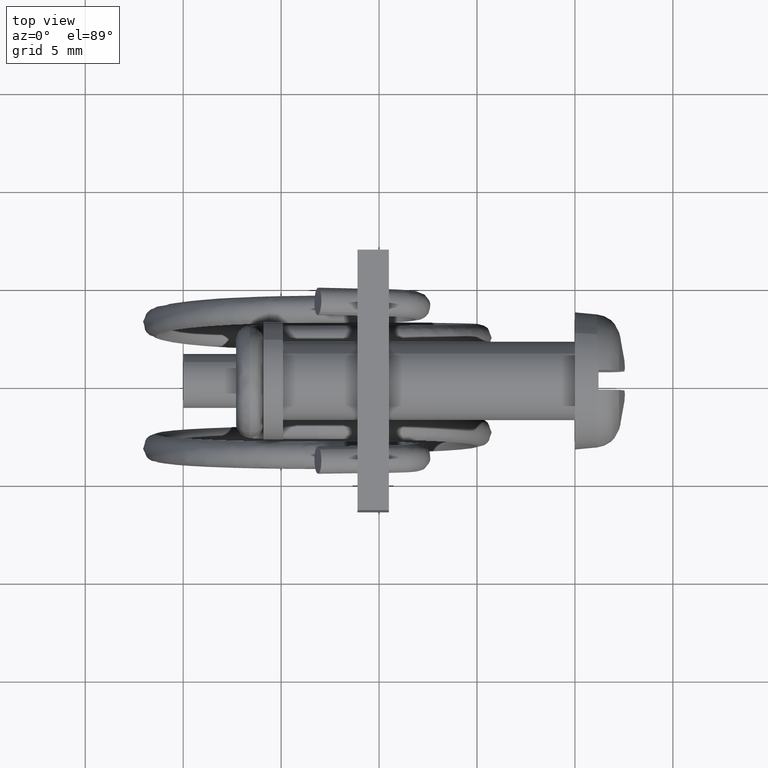
[diagram: clean part render]
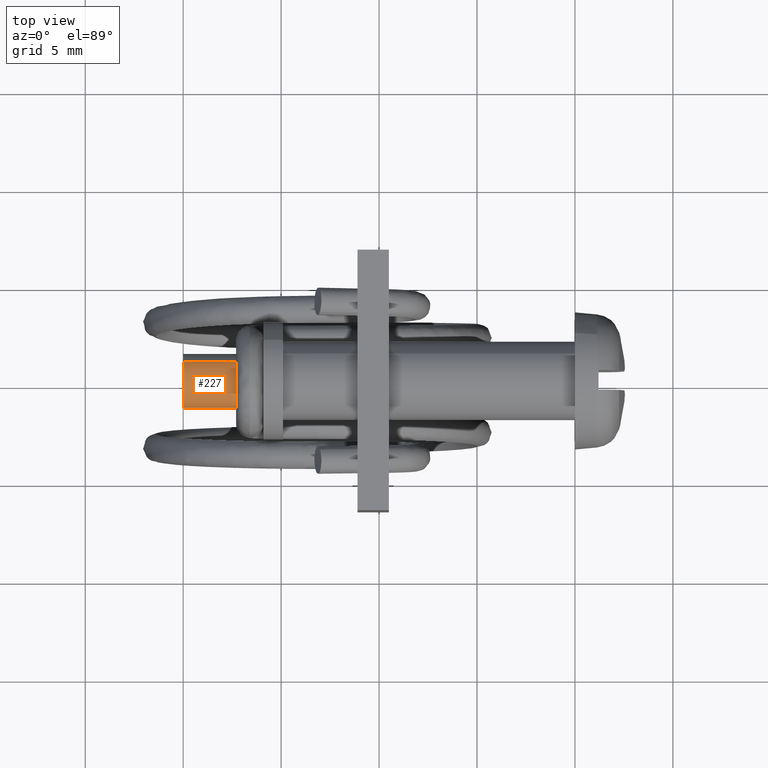
[diagram: same view with one face highlighted and labeled with its STEP entity id]
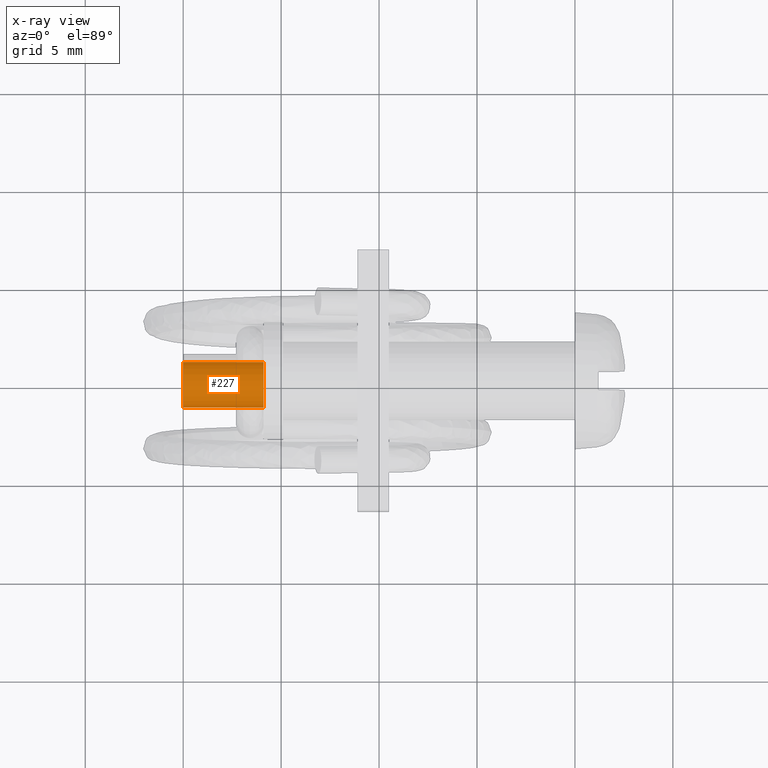
[diagram: x-ray of the same camera — body ghosted, the highlighted face saturated]
A machine part, top view. The second image highlights one B-rep face of the part: STEP entity #227.
The next image is the same camera in x-ray: the body ghosted, the highlighted face saturated — about 0% of this face is hidden behind the body in this view.
In plain terms, the highlighted face is a freeform B-spline surface patch.
Its self-contained STEP definition (entity closure, byte-faithful):
#10=CARTESIAN_POINT('',(-20.0,0.0,1.375000000000100));
#11=VERTEX_POINT('',#10);
#12=CARTESIAN_POINT('',(-20.0,0.946487487070223,0.997389724125557));
#13=VERTEX_POINT('',#12);
#14=CARTESIAN_POINT('',(-20.0,0.0,1.375000000000100));
#15=CARTESIAN_POINT('',(-20.000000000000060,0.130496401009927,1.375048197944751));
#16=CARTESIAN_POINT('',(-19.999999999999918,0.380576522623038,1.339129450176283));
#17=CARTESIAN_POINT('',(-20.000000000000039,0.701707683390457,1.197574553642706));
#18=CARTESIAN_POINT('',(-19.999999999999972,0.875502378906615,1.064762507621315));
#19=CARTESIAN_POINT('',(-20.0,0.946487487070223,0.997389724125557));
#20=B_SPLINE_CURVE_WITH_KNOTS('',3,(#14,#15,#16,#17,#18,#19),.UNSPECIFIED.,.F.,.U.,(4,1,1,4),(7.176397E-009,0.391476192725882,0.750325157216938,1.043931140742162),.UNSPECIFIED.);
#21=EDGE_CURVE('',#11,#13,#20,.T.);
#51=CARTESIAN_POINT('',(-20.0,-0.946487487070223,-0.997389724125558));
#52=VERTEX_POINT('',#51);
#63=CARTESIAN_POINT('',(-20.0,-1.375000000000076,0.000000254936306));
#64=VERTEX_POINT('',#63);
#65=CARTESIAN_POINT('',(-20.0,-0.946487487070223,-0.997389724125558));
#66=CARTESIAN_POINT('',(-19.999999999999989,-1.035054766757715,-0.913401078488500));
#67=CARTESIAN_POINT('',(-20.000000000000011,-1.167472476157451,-0.749009390463870));
#68=CARTESIAN_POINT('',(-19.999999999999979,-1.284325753076091,-0.507196080593296));
#69=CARTESIAN_POINT('',(-20.000000000000039,-1.356329450425536,-0.267346199950177));
#70=CARTESIAN_POINT('',(-19.999999999999890,-1.375022427313851,-0.104619954614513));
#71=CARTESIAN_POINT('',(-20.0,-1.375000000000076,0.000000254936306));
#72=B_SPLINE_CURVE_WITH_KNOTS('',3,(#65,#66,#67,#68,#69,#70,#71),.UNSPECIFIED.,.F.,.U.,(4,1,1,1,4),(7.611903E-009,0.366164316354903,0.627707613039120,0.802072832296482,1.115927610816579),.UNSPECIFIED.);
#73=EDGE_CURVE('',#52,#64,#72,.T.);
#75=CARTESIAN_POINT('',(-20.0,-1.375000000000076,0.000000254936306));
#76=CARTESIAN_POINT('',(-20.000000000000028,-1.375019450985614,0.101243332362719));
#77=CARTESIAN_POINT('',(-19.999999999999950,-1.353153714928936,0.298093868876450));
#78=CARTESIAN_POINT('',(-20.000000000000028,-1.250201852117075,0.603570622731832));
#79=CARTESIAN_POINT('',(-19.999999999999961,-1.089252132652281,0.857713103052179));
#80=CARTESIAN_POINT('',(-20.000000000000021,-0.869679784557248,1.077263118237210));
#81=CARTESIAN_POINT('',(-20.000000000000011,-0.656939101528884,1.217535823544942));
#82=CARTESIAN_POINT('',(-19.999999999999780,-0.359925275461545,1.340558235315662));
#83=CARTESIAN_POINT('',(-20.000000000000099,-0.146254374086761,1.375091272526653));
#84=CARTESIAN_POINT('',(-20.0,0.0,1.375000000000100));
#85=B_SPLINE_CURVE_WITH_KNOTS('',3,(#75,#76,#77,#78,#79,#80,#81,#82,#83,#84),.UNSPECIFIED.,.F.,.U.,(4,1,1,1,1,1,1,4),(0.000000028152955,0.303726372753996,0.590586656171974,0.961814207794617,1.198043349825834,1.518649779637513,1.721137771014641,2.159858357767594),.UNSPECIFIED.);
#86=EDGE_CURVE('',#64,#11,#85,.T.);
#109=CARTESIAN_POINT('',(-15.900000000000309,0.946487486940971,0.997389724248213));
#110=VERTEX_POINT('',#109);
#138=CARTESIAN_POINT('',(-15.900000000000309,-0.946487486940971,-0.997389724248213));
#139=VERTEX_POINT('',#138);
#150=CARTESIAN_POINT('',(-15.900000000000309,-0.946487486940971,-0.997389724248213));
#151=CARTESIAN_POINT('',(-20.0,-0.946487487070223,-0.997389724125558));
#152=QUASI_UNIFORM_CURVE('',1,(#150,#151),.UNSPECIFIED.,.F.,.U.);
#153=EDGE_CURVE('',#139,#52,#152,.T.);
#158=CARTESIAN_POINT('',(-15.900000000000309,0.946487486940971,0.997389724248213));
#159=CARTESIAN_POINT('',(-20.0,0.946487487070223,0.997389724125557));
#160=QUASI_UNIFORM_CURVE('',1,(#158,#159),.UNSPECIFIED.,.F.,.U.);
#161=EDGE_CURVE('',#110,#13,#160,.T.);
#166=CARTESIAN_POINT('',(-15.797499999999999,-0.946487541578980,-0.997389760141968));
#167=CARTESIAN_POINT('',(-15.797499999999994,-1.943877301720948,-0.050902218562987));
#168=CARTESIAN_POINT('',(-15.797499999999999,-0.997389760141968,0.946487541578980));
#169=CARTESIAN_POINT('',(-15.797499999999994,-0.050902218562987,1.943877301720948));
#170=CARTESIAN_POINT('',(-15.797499999999999,0.946487541578980,0.997389760141968));
#171=CARTESIAN_POINT('',(-20.105062499999999,-0.946487541578980,-0.997389760141968));
#172=CARTESIAN_POINT('',(-20.105062499999995,-1.943877301720948,-0.050902218562987));
#173=CARTESIAN_POINT('',(-20.105062499999999,-0.997389760141968,0.946487541578980));
#174=CARTESIAN_POINT('',(-20.105062499999995,-0.050902218562987,1.943877301720948));
#175=CARTESIAN_POINT('',(-20.105062499999999,0.946487541578980,0.997389760141968));
#183=(BOUNDED_SURFACE()B_SPLINE_SURFACE(2,1,((#166,#171),(#167,#172),(#168,#173),(#169,#174),(#170,#175)),.UNSPECIFIED.,.F.,.F.,.U.)B_SPLINE_SURFACE_WITH_KNOTS((3,2,3),(2,2),(0.0,1.570796326794897,3.141592653589793),(0.0,4.307562500000000),.UNSPECIFIED.)GEOMETRIC_REPRESENTATION_ITEM()RATIONAL_B_SPLINE_SURFACE(((1.0,1.0),(0.707106781186548,0.707106781186548),(1.0,1.0),(0.707106781186548,0.707106781186548),(1.0,1.0)))REPRESENTATION_ITEM('')SURFACE());
#184=CARTESIAN_POINT('',(-15.900000000000000,0.0,1.375000000000100));
#185=VERTEX_POINT('',#184);
#186=CARTESIAN_POINT('',(-15.900000000000000,0.0,1.375000000000100));
#187=CARTESIAN_POINT('',(-15.900000000000009,0.097869919259493,1.375018356417372));
#188=CARTESIAN_POINT('',(-15.900000000000130,0.255537636409153,1.358088203757005));
#189=CARTESIAN_POINT('',(-15.900000000000100,0.480786140621133,1.293615545394276));
#190=CARTESIAN_POINT('',(-15.900000000000340,0.709222881092736,1.189675166203179));
#191=CARTESIAN_POINT('',(-15.900000000000160,0.863682044584254,1.076008283406545));
#192=CARTESIAN_POINT('',(-15.900000000000309,0.946487486940971,0.997389724248213));
#193=B_SPLINE_CURVE_WITH_KNOTS('',3,(#186,#187,#188,#189,#190,#191,#192),.UNSPECIFIED.,.F.,.U.,(4,1,1,1,4),(7.176442E-009,0.293605990654792,0.473031701784830,0.701390119931980,1.043931140563972),.UNSPECIFIED.);
#194=EDGE_CURVE('',#185,#110,#193,.T.);
#195=ORIENTED_EDGE('',*,*,#194,.T.);
#196=ORIENTED_EDGE('',*,*,#161,.T.);
#197=ORIENTED_EDGE('',*,*,#21,.F.);
#198=ORIENTED_EDGE('',*,*,#86,.F.);
#199=ORIENTED_EDGE('',*,*,#73,.F.);
#200=ORIENTED_EDGE('',*,*,#153,.F.);
#201=CARTESIAN_POINT('',(-15.900000000000000,-1.375000000000076,0.000000254936306));
#202=VERTEX_POINT('',#201);
#203=CARTESIAN_POINT('',(-15.900000000000309,-0.946487486940971,-0.997389724248213));
#204=CARTESIAN_POINT('',(-15.900000000000260,-1.056175883566414,-0.893429724210940));
#205=CARTESIAN_POINT('',(-15.900000000000210,-1.215793859772758,-0.681766238786986));
#206=CARTESIAN_POINT('',(-15.900000000000130,-1.348258215076401,-0.331279584463536));
#207=CARTESIAN_POINT('',(-15.900000000000031,-1.375020283521020,-0.110430850299011));
#208=CARTESIAN_POINT('',(-15.900000000000000,-1.375000000000076,0.000000254936306));
#209=B_SPLINE_CURVE_WITH_KNOTS('',3,(#203,#204,#205,#206,#207,#208),.UNSPECIFIED.,.F.,.U.,(4,1,1,4),(7.611830E-009,0.453348547296516,0.784635709433848,1.115927610994768),.UNSPECIFIED.);
#210=EDGE_CURVE('',#139,#202,#209,.T.);
#211=ORIENTED_EDGE('',*,*,#210,.T.);
#212=CARTESIAN_POINT('',(-15.900000000000000,-1.375000000000076,0.000000254936306));
#213=CARTESIAN_POINT('',(-15.900000000000020,-1.375102059909803,0.151879575904831));
#214=CARTESIAN_POINT('',(-15.899999999999970,-1.333555182991181,0.399287564926534));
#215=CARTESIAN_POINT('',(-15.900000000000070,-1.187965498175034,0.712043427781998));
#216=CARTESIAN_POINT('',(-15.899999999999940,-1.031713909005556,0.920026787501221));
#217=CARTESIAN_POINT('',(-15.900000000000020,-0.841636805438513,1.096598609098273));
#218=CARTESIAN_POINT('',(-15.900000000000000,-0.627478599781208,1.234070877851923));
#219=CARTESIAN_POINT('',(-15.900000000000020,-0.337455709707045,1.345946905601695));
#220=CARTESIAN_POINT('',(-15.899999999999819,-0.123744270029306,1.375037607279514));
#221=CARTESIAN_POINT('',(-15.900000000000000,0.0,1.375000000000100));
#222=B_SPLINE_CURVE_WITH_KNOTS('',3,(#212,#213,#214,#215,#216,#217,#218,#219,#220,#221),.UNSPECIFIED.,.F.,.U.,(4,1,1,1,1,1,1,4),(0.000000028152955,0.455593544883563,0.742452606815748,1.029311507363875,1.231787947097480,1.518649779637513,1.788634929331972,2.159858357767594),.UNSPECIFIED.);
#223=EDGE_CURVE('',#202,#185,#222,.T.);
#224=ORIENTED_EDGE('',*,*,#223,.T.);
#225=EDGE_LOOP('',(#195,#196,#197,#198,#199,#200,#211,#224));
#226=FACE_OUTER_BOUND('',#225,.T.);
#227=ADVANCED_FACE('',(#226),#183,.T.);